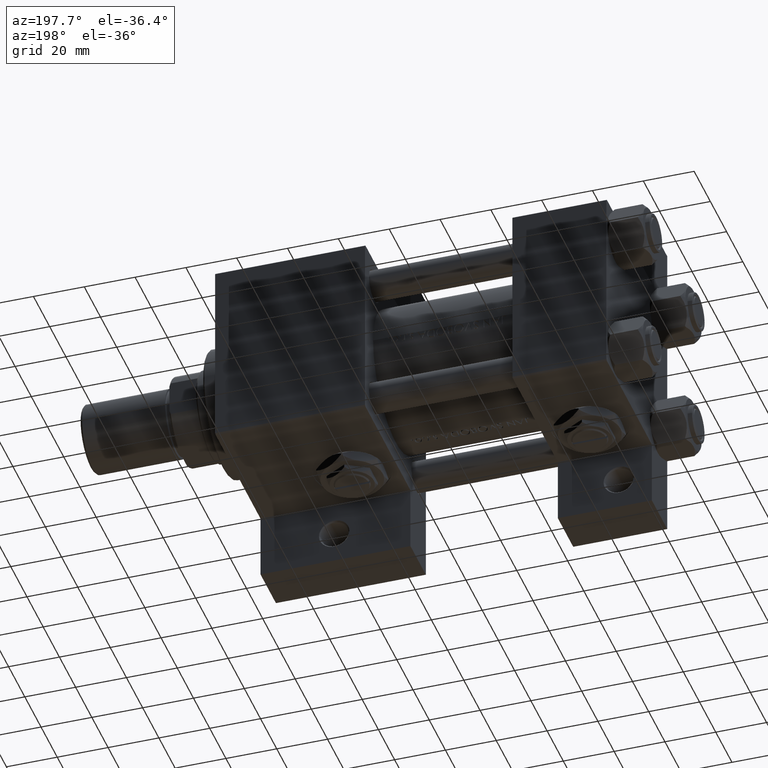
[diagram: clean part render]
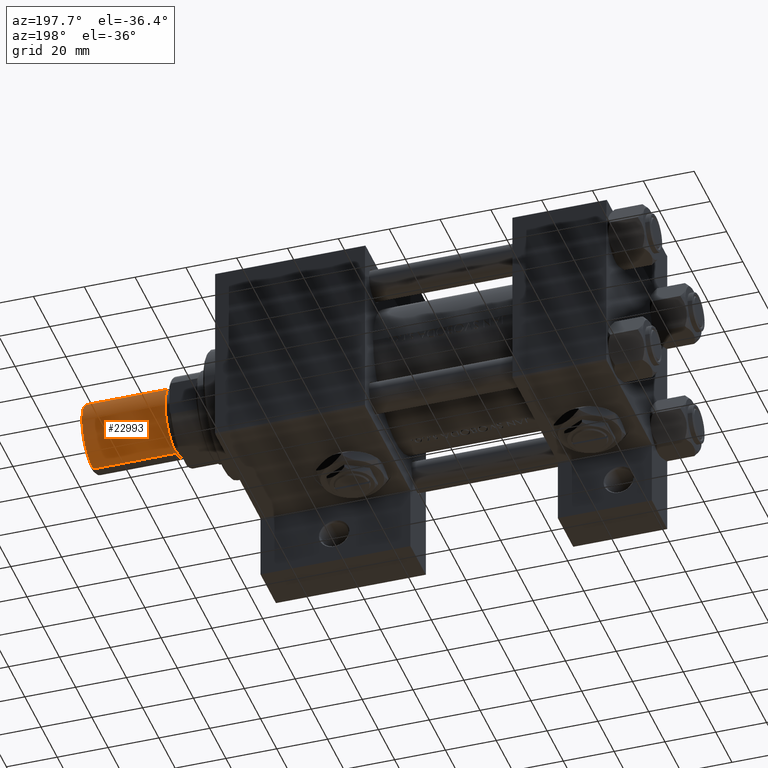
[diagram: same view with one face highlighted and labeled with its STEP entity id]
A machine part, auxiliary view. The second image highlights one B-rep face of the part: STEP entity #22993.
In plain terms, the highlighted cylindrical surface (edge-blend (fillet) strip) has radius 13.5 mm, axis along (1, -0, -0).
Its self-contained STEP definition (entity closure, byte-faithful):
#704 = CARTESIAN_POINT ( 'NONE',  ( -13.50000000000000000, 0.000000000000000000, 0.7999999999999951594 ) ) ;
#1246 = LINE ( 'NONE', #23033, #23375 ) ;
#1447 = CARTESIAN_POINT ( 'NONE',  ( 13.50000000000000000, 1.653273178848926867E-15, 33.50000000000000000 ) ) ;
#4491 = DIRECTION ( 'NONE',  ( 1.000000000000000000, 0.000000000000000000, 0.000000000000000000 ) ) ;
#4644 = ORIENTED_EDGE ( 'NONE', *, *, #24674, .T. ) ;
#6410 = EDGE_CURVE ( 'NONE', #44780, #27040, #9064, .T. ) ;
#7885 = DIRECTION ( 'NONE',  ( -0.000000000000000000, -0.000000000000000000, -1.000000000000000000 ) ) ;
#8579 = VERTEX_POINT ( 'NONE', #32876 ) ;
#9064 = CIRCLE ( 'NONE', #37341, 13.50000000000000000 ) ;
#17499 = EDGE_CURVE ( 'NONE', #8579, #27040, #1246, .T. ) ;
#20412 = VECTOR ( 'NONE', #47244, 1000.000000000000000 ) ;
#21259 = FACE_OUTER_BOUND ( 'NONE', #33488, .T. ) ;
#22993 = ADVANCED_FACE ( 'NONE', ( #21259 ), #36733, .T. ) ;
#23033 = CARTESIAN_POINT ( 'NONE',  ( -13.50000000000000000, 0.000000000000000000, 33.50000000000000000 ) ) ;
#23375 = VECTOR ( 'NONE', #7885, 1000.000000000000000 ) ;
#23451 = ORIENTED_EDGE ( 'NONE', *, *, #17499, .F. ) ;
#24674 = EDGE_CURVE ( 'NONE', #34158, #44780, #39149, .T. ) ;
#25803 = DIRECTION ( 'NONE',  ( -0.000000000000000000, -0.000000000000000000, -1.000000000000000000 ) ) ;
#26791 = AXIS2_PLACEMENT_3D ( 'NONE', #40522, #25803, #29837 ) ;
#27040 = VERTEX_POINT ( 'NONE', #704 ) ;
#29552 = EDGE_CURVE ( 'NONE', #34158, #8579, #30993, .T. ) ;
#29837 = DIRECTION ( 'NONE',  ( -1.000000000000000000, 0.000000000000000000, 0.000000000000000000 ) ) ;
#30993 = CIRCLE ( 'NONE', #34216, 13.50000000000000000 ) ;
#31024 = DIRECTION ( 'NONE',  ( -0.000000000000000000, -0.000000000000000000, 1.000000000000000000 ) ) ;
#32876 = CARTESIAN_POINT ( 'NONE',  ( -13.50000000000000000, 0.000000000000000000, 33.50000000000000000 ) ) ;
#33488 = EDGE_LOOP ( 'NONE', ( #44761, #4644, #40716, #23451 ) ) ;
#33767 = CARTESIAN_POINT ( 'NONE',  ( 13.50000000000000000, 1.653273178848926867E-15, 33.50000000000000000 ) ) ;
#34158 = VERTEX_POINT ( 'NONE', #33767 ) ;
#34216 = AXIS2_PLACEMENT_3D ( 'NONE', #37117, #44459, #44216 ) ;
#36733 = CYLINDRICAL_SURFACE ( 'NONE', #26791, 13.50000000000000000 ) ;
#37117 = CARTESIAN_POINT ( 'NONE',  ( 0.000000000000000000, 0.000000000000000000, 33.50000000000000000 ) ) ;
#37341 = AXIS2_PLACEMENT_3D ( 'NONE', #41928, #31024, #4491 ) ;
#39149 = LINE ( 'NONE', #1447, #20412 ) ;
#40522 = CARTESIAN_POINT ( 'NONE',  ( 0.000000000000000000, 0.000000000000000000, 33.50000000000000000 ) ) ;
#40716 = ORIENTED_EDGE ( 'NONE', *, *, #6410, .T. ) ;
#41928 = CARTESIAN_POINT ( 'NONE',  ( 0.000000000000000000, 0.000000000000000000, 0.7999999999999951594 ) ) ;
#43564 = CARTESIAN_POINT ( 'NONE',  ( 13.50000000000000000, 1.653273178848926867E-15, 0.7999999999999951594 ) ) ;
#44216 = DIRECTION ( 'NONE',  ( 1.000000000000000000, 0.000000000000000000, 0.000000000000000000 ) ) ;
#44459 = DIRECTION ( 'NONE',  ( 0.000000000000000000, 0.000000000000000000, 1.000000000000000000 ) ) ;
#44761 = ORIENTED_EDGE ( 'NONE', *, *, #29552, .F. ) ;
#44780 = VERTEX_POINT ( 'NONE', #43564 ) ;
#47244 = DIRECTION ( 'NONE',  ( -0.000000000000000000, -0.000000000000000000, -1.000000000000000000 ) ) ;